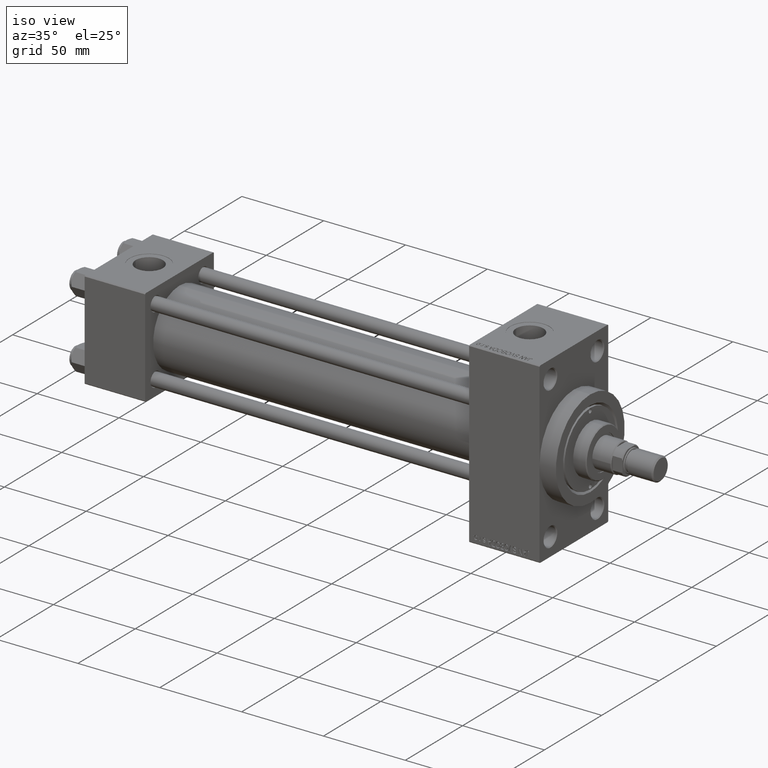
[diagram: clean part render]
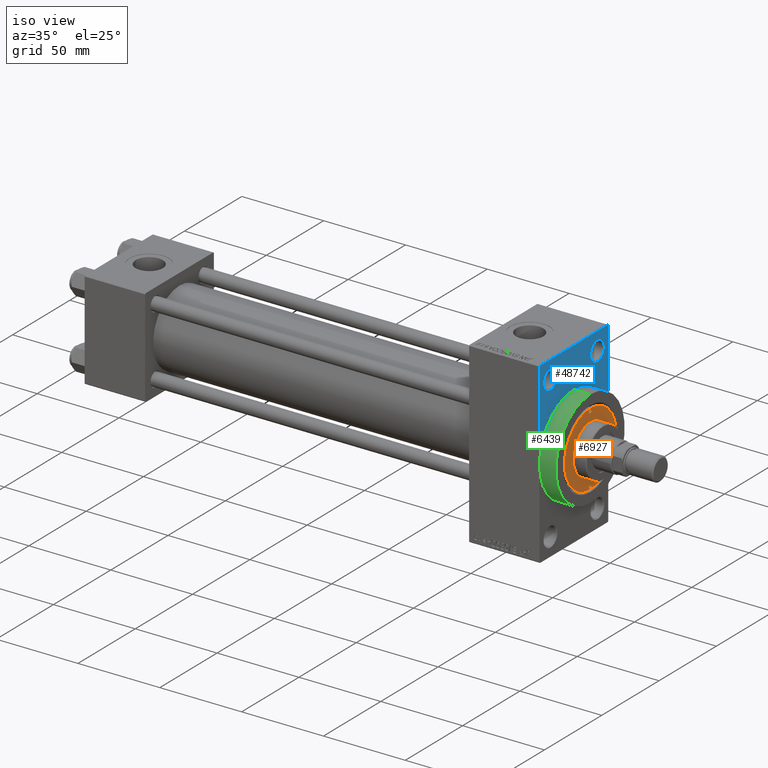
[diagram: same view with three faces highlighted in distinct colors, each labeled with its STEP entity id]
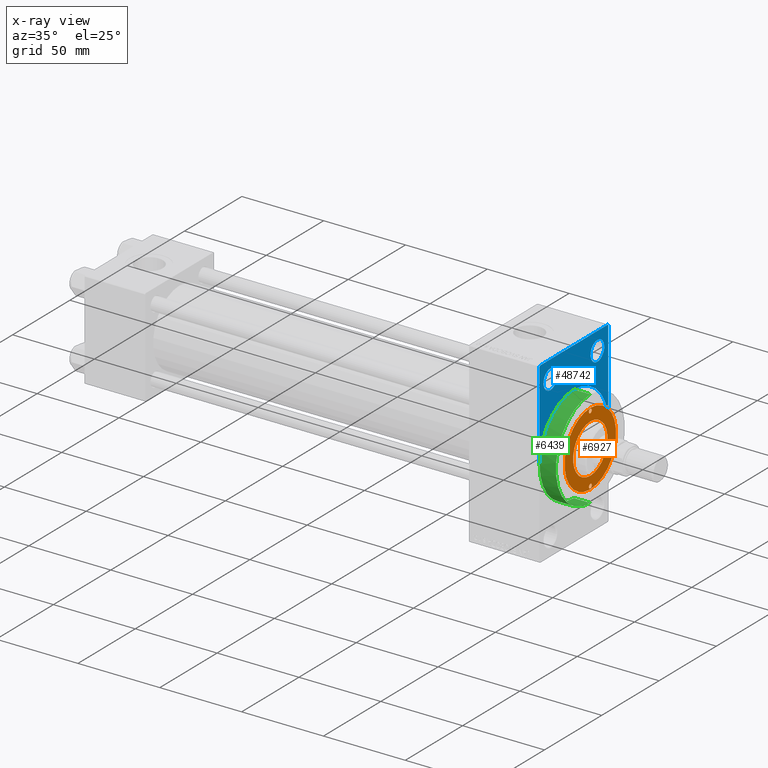
[diagram: x-ray of the same camera — body ghosted, the three highlighted faces saturated]
A machine part, iso view with three faces highlighted in distinct colors.
The next image is the same camera in x-ray (body ghosted, the three faces saturated) — at least one of them is partly hidden behind the body in this view.
Their STEP definitions:

[orange] entity #6927 — the highlighted planar face has unit normal (1, -0, -0).
#166 = CIRCLE ( 'NONE', #30821, 22.50000000000000355 ) ;
#400 = AXIS2_PLACEMENT_3D ( 'NONE', #48421, #6219, #41584 ) ;
#1160 = VERTEX_POINT ( 'NONE', #24662 ) ;
#1731 = FACE_BOUND ( 'NONE', #35159, .T. ) ;
#1755 = AXIS2_PLACEMENT_3D ( 'NONE', #32557, #42515, #8823 ) ;
#1932 = AXIS2_PLACEMENT_3D ( 'NONE', #33710, #18025, #2875 ) ;
#2875 = DIRECTION ( 'NONE',  ( 1.000000000000000000, 0.000000000000000000, 0.000000000000000000 ) ) ;
#4000 = CARTESIAN_POINT ( 'NONE',  ( 0.000000000000000000, 0.000000000000000000, 43.25999999999999801 ) ) ;
#5622 = ORIENTED_EDGE ( 'NONE', *, *, #20699, .F. ) ;
#5970 = CIRCLE ( 'NONE', #1932, 22.50000000000000355 ) ;
#6219 = DIRECTION ( 'NONE',  ( -0.000000000000000000, -0.000000000000000000, 1.000000000000000000 ) ) ;
#6927 = ADVANCED_FACE ( 'NONE', ( #17134, #24966, #1731, #11936 ), #27341, .T. ) ;
#7112 = EDGE_CURVE ( 'NONE', #36752, #47487, #46964, .T. ) ;
#8041 = CARTESIAN_POINT ( 'NONE',  ( 20.75000000000000000, 0.000000000000000000, 43.25999999999999801 ) ) ;
#8503 = DIRECTION ( 'NONE',  ( 0.000000000000000000, 0.000000000000000000, 1.000000000000000000 ) ) ;
#8823 = DIRECTION ( 'NONE',  ( 1.000000000000000000, 0.000000000000000000, -0.000000000000000000 ) ) ;
#9174 = CARTESIAN_POINT ( 'NONE',  ( 20.75000000000000000, 0.000000000000000000, 43.25999999999999801 ) ) ;
#9920 = VERTEX_POINT ( 'NONE', #12687 ) ;
#10439 = EDGE_CURVE ( 'NONE', #14187, #32037, #17856, .T. ) ;
#10974 = CIRCLE ( 'NONE', #39908, 1.249999999999997558 ) ;
#11603 = EDGE_CURVE ( 'NONE', #40432, #1160, #166, .T. ) ;
#11738 = AXIS2_PLACEMENT_3D ( 'NONE', #49631, #45087, #45583 ) ;
#11746 = ORIENTED_EDGE ( 'NONE', *, *, #11603, .T. ) ;
#11797 = DIRECTION ( 'NONE',  ( 1.000000000000000000, 0.000000000000000000, 0.000000000000000000 ) ) ;
#11936 = FACE_OUTER_BOUND ( 'NONE', #38841, .T. ) ;
#12687 = CARTESIAN_POINT ( 'NONE',  ( -19.50000000000000355, 0.000000000000000000, 43.25999999999999801 ) ) ;
#13122 = ORIENTED_EDGE ( 'NONE', *, *, #7112, .F. ) ;
#13630 = CARTESIAN_POINT ( 'NONE',  ( 22.50000000000000355, 2.755455298081545172E-15, 43.25999999999999801 ) ) ;
#14187 = VERTEX_POINT ( 'NONE', #38227 ) ;
#14851 = CIRCLE ( 'NONE', #43099, 15.00000000000000000 ) ;
#14974 = CIRCLE ( 'NONE', #11738, 1.249999999999997558 ) ;
#15014 = EDGE_CURVE ( 'NONE', #1160, #40432, #5970, .T. ) ;
#17070 = DIRECTION ( 'NONE',  ( 1.000000000000000000, 0.000000000000000000, 0.000000000000000000 ) ) ;
#17134 = FACE_BOUND ( 'NONE', #50005, .T. ) ;
#17856 = CIRCLE ( 'NONE', #46131, 15.00000000000000000 ) ;
#18025 = DIRECTION ( 'NONE',  ( 0.000000000000000000, 0.000000000000000000, 1.000000000000000000 ) ) ;
#18631 = DIRECTION ( 'NONE',  ( 1.000000000000000000, 0.000000000000000000, 0.000000000000000000 ) ) ;
#19237 = CARTESIAN_POINT ( 'NONE',  ( -15.00000000000000000, 0.000000000000000000, 43.25999999999999801 ) ) ;
#19620 = CARTESIAN_POINT ( 'NONE',  ( 0.000000000000000000, 0.000000000000000000, 43.25999999999999801 ) ) ;
#19832 = ORIENTED_EDGE ( 'NONE', *, *, #37078, .F. ) ;
#20699 = EDGE_CURVE ( 'NONE', #47487, #36752, #10974, .T. ) ;
#22726 = EDGE_CURVE ( 'NONE', #9920, #43137, #14974, .T. ) ;
#24662 = CARTESIAN_POINT ( 'NONE',  ( -22.50000000000000355, 0.000000000000000000, 43.25999999999999801 ) ) ;
#24966 = FACE_BOUND ( 'NONE', #48180, .T. ) ;
#26437 = CARTESIAN_POINT ( 'NONE',  ( -22.00000000000000000, 1.530808498934188612E-16, 43.25999999999999801 ) ) ;
#26471 = DIRECTION ( 'NONE',  ( 0.000000000000000000, 0.000000000000000000, 1.000000000000000000 ) ) ;
#27341 = PLANE ( 'NONE',  #1755 ) ;
#29150 = AXIS2_PLACEMENT_3D ( 'NONE', #8041, #31015, #18631 ) ;
#30123 = CARTESIAN_POINT ( 'NONE',  ( 19.50000000000000355, 1.530808498934188612E-16, 43.25999999999999801 ) ) ;
#30821 = AXIS2_PLACEMENT_3D ( 'NONE', #36533, #40831, #17070 ) ;
#31015 = DIRECTION ( 'NONE',  ( -0.000000000000000000, -0.000000000000000000, 1.000000000000000000 ) ) ;
#32037 = VERTEX_POINT ( 'NONE', #19237 ) ;
#32557 = CARTESIAN_POINT ( 'NONE',  ( 0.000000000000000000, 0.000000000000000000, 43.25999999999999801 ) ) ;
#32641 = CIRCLE ( 'NONE', #400, 1.249999999999997558 ) ;
#32914 = DIRECTION ( 'NONE',  ( -0.000000000000000000, -0.000000000000000000, 1.000000000000000000 ) ) ;
#33710 = CARTESIAN_POINT ( 'NONE',  ( 0.000000000000000000, 0.000000000000000000, 43.25999999999999801 ) ) ;
#35159 = EDGE_LOOP ( 'NONE', ( #37483, #40119 ) ) ;
#36354 = EDGE_CURVE ( 'NONE', #32037, #14187, #14851, .T. ) ;
#36533 = CARTESIAN_POINT ( 'NONE',  ( 0.000000000000000000, 0.000000000000000000, 43.25999999999999801 ) ) ;
#36752 = VERTEX_POINT ( 'NONE', #30123 ) ;
#37078 = EDGE_CURVE ( 'NONE', #43137, #9920, #32641, .T. ) ;
#37483 = ORIENTED_EDGE ( 'NONE', *, *, #36354, .F. ) ;
#38227 = CARTESIAN_POINT ( 'NONE',  ( 15.00000000000000000, 1.836970198721029589E-15, 43.25999999999999801 ) ) ;
#38841 = EDGE_LOOP ( 'NONE', ( #46011, #11746 ) ) ;
#39908 = AXIS2_PLACEMENT_3D ( 'NONE', #9174, #32914, #40504 ) ;
#40119 = ORIENTED_EDGE ( 'NONE', *, *, #10439, .F. ) ;
#40432 = VERTEX_POINT ( 'NONE', #13630 ) ;
#40504 = DIRECTION ( 'NONE',  ( 1.000000000000000000, 0.000000000000000000, 0.000000000000000000 ) ) ;
#40831 = DIRECTION ( 'NONE',  ( 0.000000000000000000, 0.000000000000000000, 1.000000000000000000 ) ) ;
#41584 = DIRECTION ( 'NONE',  ( 1.000000000000000000, 0.000000000000000000, 0.000000000000000000 ) ) ;
#42416 = CARTESIAN_POINT ( 'NONE',  ( 22.00000000000000000, 0.000000000000000000, 43.25999999999999801 ) ) ;
#42515 = DIRECTION ( 'NONE',  ( 0.000000000000000000, 0.000000000000000000, 1.000000000000000000 ) ) ;
#42660 = ORIENTED_EDGE ( 'NONE', *, *, #22726, .F. ) ;
#43099 = AXIS2_PLACEMENT_3D ( 'NONE', #19620, #8503, #11797 ) ;
#43137 = VERTEX_POINT ( 'NONE', #26437 ) ;
#45087 = DIRECTION ( 'NONE',  ( -0.000000000000000000, -0.000000000000000000, 1.000000000000000000 ) ) ;
#45583 = DIRECTION ( 'NONE',  ( 1.000000000000000000, 0.000000000000000000, 0.000000000000000000 ) ) ;
#46011 = ORIENTED_EDGE ( 'NONE', *, *, #15014, .T. ) ;
#46131 = AXIS2_PLACEMENT_3D ( 'NONE', #4000, #26471, #46456 ) ;
#46456 = DIRECTION ( 'NONE',  ( 1.000000000000000000, 0.000000000000000000, 0.000000000000000000 ) ) ;
#46964 = CIRCLE ( 'NONE', #29150, 1.249999999999997558 ) ;
#47487 = VERTEX_POINT ( 'NONE', #42416 ) ;
#48180 = EDGE_LOOP ( 'NONE', ( #5622, #13122 ) ) ;
#48421 = CARTESIAN_POINT ( 'NONE',  ( -20.75000000000000000, 0.000000000000000000, 43.25999999999999801 ) ) ;
#49631 = CARTESIAN_POINT ( 'NONE',  ( -20.75000000000000000, 0.000000000000000000, 43.25999999999999801 ) ) ;
#50005 = EDGE_LOOP ( 'NONE', ( #42660, #19832 ) ) ;

[blue] entity #48742 — the highlighted planar face has unit normal (-1, 0, 0).
#299 = DIRECTION ( 'NONE',  ( 0.000000000000000000, 0.000000000000000000, 1.000000000000000000 ) ) ;
#597 = ORIENTED_EDGE ( 'NONE', *, *, #3696, .T. ) ;
#1329 = ORIENTED_EDGE ( 'NONE', *, *, #36302, .F. ) ;
#1512 = DIRECTION ( 'NONE',  ( -1.000000000000000000, 0.000000000000000000, -0.000000000000000000 ) ) ;
#2313 = CARTESIAN_POINT ( 'NONE',  ( 278.0000000000000000, 0.000000000000000000, 30.00000000000000000 ) ) ;
#2564 = VECTOR ( 'NONE', #49503, 1000.000000000000000 ) ;
#2591 = PLANE ( 'NONE',  #41002 ) ;
#2720 = CIRCLE ( 'NONE', #45508, 30.00000000000000000 ) ;
#3594 = VERTEX_POINT ( 'NONE', #13577 ) ;
#3696 = EDGE_CURVE ( 'NONE', #8220, #35297, #26683, .T. ) ;
#4615 = AXIS2_PLACEMENT_3D ( 'NONE', #46006, #7603, #22989 ) ;
#6135 = FACE_BOUND ( 'NONE', #46866, .T. ) ;
#6229 = CARTESIAN_POINT ( 'NONE',  ( 278.0000000000000000, 30.00000000000000000, 0.000000000000000000 ) ) ;
#6385 = FACE_BOUND ( 'NONE', #42821, .T. ) ;
#6669 = EDGE_LOOP ( 'NONE', ( #597, #44704, #43523, #1329, #25452, #26515, #34460 ) ) ;
#6891 = DIRECTION ( 'NONE',  ( -1.000000000000000000, 0.000000000000000000, -0.000000000000000000 ) ) ;
#7603 = DIRECTION ( 'NONE',  ( -1.000000000000000000, 0.000000000000000000, -0.000000000000000000 ) ) ;
#8220 = VERTEX_POINT ( 'NONE', #47499 ) ;
#9132 = DIRECTION ( 'NONE',  ( 0.000000000000000000, -0.7071067811865474617, 0.7071067811865474617 ) ) ;
#9888 = DIRECTION ( 'NONE',  ( 0.000000000000000000, 0.000000000000000000, -1.000000000000000000 ) ) ;
#10562 = VERTEX_POINT ( 'NONE', #6229 ) ;
#10639 = ORIENTED_EDGE ( 'NONE', *, *, #27064, .T. ) ;
#10826 = CARTESIAN_POINT ( 'NONE',  ( 278.0000000000000000, 29.99999999999999645, 54.49999999999999289 ) ) ;
#12439 = AXIS2_PLACEMENT_3D ( 'NONE', #40694, #41188, #40448 ) ;
#13278 = LINE ( 'NONE', #31742, #31019 ) ;
#13577 = CARTESIAN_POINT ( 'NONE',  ( 278.0000000000000000, 29.99999999999999645, 53.99999999999996447 ) ) ;
#14864 = LINE ( 'NONE', #10826, #2564 ) ;
#15244 = EDGE_CURVE ( 'NONE', #10562, #38855, #2720, .T. ) ;
#15775 = CARTESIAN_POINT ( 'NONE',  ( 278.0000000000000000, -20.50000000000000000, 49.50000000000019895 ) ) ;
#15948 = CARTESIAN_POINT ( 'NONE',  ( 278.0000000000000000, 20.50000000000000000, 43.50000000000000000 ) ) ;
#16699 = ORIENTED_EDGE ( 'NONE', *, *, #49070, .T. ) ;
#16705 = CARTESIAN_POINT ( 'NONE',  ( 278.0000000000000000, 29.49999999999996803, 54.49999999999999289 ) ) ;
#16784 = AXIS2_PLACEMENT_3D ( 'NONE', #27013, #18441, #34875 ) ;
#16850 = EDGE_CURVE ( 'NONE', #44949, #26063, #33417, .T. ) ;
#16949 = CARTESIAN_POINT ( 'NONE',  ( 278.0000000000000000, 20.50000000000000000, 37.49999999999979394 ) ) ;
#18441 = DIRECTION ( 'NONE',  ( -1.000000000000000000, 0.000000000000000000, -0.000000000000000000 ) ) ;
#22136 = CARTESIAN_POINT ( 'NONE',  ( 278.0000000000000000, 29.99999999999999645, 54.49999999999999289 ) ) ;
#22279 = DIRECTION ( 'NONE',  ( -0.000000000000000000, 0.000000000000000000, 1.000000000000000000 ) ) ;
#22375 = CARTESIAN_POINT ( 'NONE',  ( 278.0000000000000000, -30.00000000000000000, 0.000000000000000000 ) ) ;
#22575 = DIRECTION ( 'NONE',  ( -0.000000000000000000, -0.7071067811865253683, -0.7071067811865696662 ) ) ;
#22989 = DIRECTION ( 'NONE',  ( 0.000000000000000000, 0.000000000000000000, 1.000000000000000000 ) ) ;
#23079 = LINE ( 'NONE', #38512, #45341 ) ;
#24330 = AXIS2_PLACEMENT_3D ( 'NONE', #48249, #1512, #43953 ) ;
#25329 = FACE_OUTER_BOUND ( 'NONE', #6669, .T. ) ;
#25452 = ORIENTED_EDGE ( 'NONE', *, *, #15244, .F. ) ;
#26063 = VERTEX_POINT ( 'NONE', #39410 ) ;
#26515 = ORIENTED_EDGE ( 'NONE', *, *, #27117, .F. ) ;
#26683 = LINE ( 'NONE', #22136, #36347 ) ;
#27013 = CARTESIAN_POINT ( 'NONE',  ( 278.0000000000000000, 20.50000000000000000, 43.50000000000000000 ) ) ;
#27064 = EDGE_CURVE ( 'NONE', #49869, #33717, #46143, .T. ) ;
#27117 = EDGE_CURVE ( 'NONE', #3594, #10562, #14864, .T. ) ;
#27942 = DIRECTION ( 'NONE',  ( 0.000000000000000000, 0.000000000000000000, -1.000000000000000000 ) ) ;
#30162 = VERTEX_POINT ( 'NONE', #43747 ) ;
#30334 = CARTESIAN_POINT ( 'NONE',  ( 278.0000000000000000, 0.000000000000000000, 0.000000000000000000 ) ) ;
#30537 = VECTOR ( 'NONE', #9132, 1000.000000000000114 ) ;
#31019 = VECTOR ( 'NONE', #27942, 1000.000000000000000 ) ;
#31707 = EDGE_CURVE ( 'NONE', #35297, #30162, #23079, .T. ) ;
#31742 = CARTESIAN_POINT ( 'NONE',  ( 278.0000000000000000, -30.00000000000000000, 54.50000000000000000 ) ) ;
#33417 = CIRCLE ( 'NONE', #47956, 6.000000000000199840 ) ;
#33717 = VERTEX_POINT ( 'NONE', #15775 ) ;
#34460 = ORIENTED_EDGE ( 'NONE', *, *, #49828, .T. ) ;
#34875 = DIRECTION ( 'NONE',  ( 0.000000000000000000, 0.000000000000000000, 1.000000000000000000 ) ) ;
#35297 = VERTEX_POINT ( 'NONE', #46726 ) ;
#35385 = CIRCLE ( 'NONE', #16784, 6.000000000000199840 ) ;
#36302 = EDGE_CURVE ( 'NONE', #38855, #47572, #41482, .T. ) ;
#36347 = VECTOR ( 'NONE', #37570, 1000.000000000000000 ) ;
#36415 = LINE ( 'NONE', #16705, #30537 ) ;
#36421 = EDGE_CURVE ( 'NONE', #30162, #47572, #13278, .T. ) ;
#37570 = DIRECTION ( 'NONE',  ( 0.000000000000000000, -1.000000000000000000, 1.156482317317871478E-16 ) ) ;
#38512 = CARTESIAN_POINT ( 'NONE',  ( 278.0000000000000000, -30.00000000000000000, 53.99999999999997158 ) ) ;
#38855 = VERTEX_POINT ( 'NONE', #2313 ) ;
#39410 = CARTESIAN_POINT ( 'NONE',  ( 278.0000000000000000, 20.50000000000000000, 49.50000000000019895 ) ) ;
#39709 = CARTESIAN_POINT ( 'NONE',  ( 278.0000000000000000, -20.50000000000000000, 37.49999999999979394 ) ) ;
#40448 = DIRECTION ( 'NONE',  ( 0.000000000000000000, 0.000000000000000000, -1.000000000000000000 ) ) ;
#40694 = CARTESIAN_POINT ( 'NONE',  ( 278.0000000000000000, 0.000000000000000000, 0.000000000000000000 ) ) ;
#41002 = AXIS2_PLACEMENT_3D ( 'NONE', #48342, #6891, #22279 ) ;
#41188 = DIRECTION ( 'NONE',  ( 1.000000000000000000, 0.000000000000000000, 0.000000000000000000 ) ) ;
#41468 = DIRECTION ( 'NONE',  ( 1.000000000000000000, 0.000000000000000000, 0.000000000000000000 ) ) ;
#41482 = CIRCLE ( 'NONE', #12439, 30.00000000000000000 ) ;
#42821 = EDGE_LOOP ( 'NONE', ( #10639, #47611 ) ) ;
#43523 = ORIENTED_EDGE ( 'NONE', *, *, #36421, .T. ) ;
#43747 = CARTESIAN_POINT ( 'NONE',  ( 278.0000000000000000, -30.00000000000000000, 53.99999999999997158 ) ) ;
#43953 = DIRECTION ( 'NONE',  ( 0.000000000000000000, 0.000000000000000000, 1.000000000000000000 ) ) ;
#44704 = ORIENTED_EDGE ( 'NONE', *, *, #31707, .T. ) ;
#44949 = VERTEX_POINT ( 'NONE', #16949 ) ;
#45341 = VECTOR ( 'NONE', #22575, 1000.000000000000114 ) ;
#45508 = AXIS2_PLACEMENT_3D ( 'NONE', #30334, #41468, #9888 ) ;
#45947 = ORIENTED_EDGE ( 'NONE', *, *, #16850, .T. ) ;
#46006 = CARTESIAN_POINT ( 'NONE',  ( 278.0000000000000000, -20.50000000000000000, 43.50000000000000000 ) ) ;
#46143 = CIRCLE ( 'NONE', #24330, 6.000000000000199840 ) ;
#46505 = EDGE_CURVE ( 'NONE', #33717, #49869, #49819, .T. ) ;
#46726 = CARTESIAN_POINT ( 'NONE',  ( 278.0000000000000000, -29.50000000000000355, 54.50000000000000000 ) ) ;
#46788 = DIRECTION ( 'NONE',  ( -1.000000000000000000, 0.000000000000000000, -0.000000000000000000 ) ) ;
#46866 = EDGE_LOOP ( 'NONE', ( #45947, #16699 ) ) ;
#47499 = CARTESIAN_POINT ( 'NONE',  ( 278.0000000000000000, 29.49999999999996803, 54.49999999999999289 ) ) ;
#47572 = VERTEX_POINT ( 'NONE', #22375 ) ;
#47611 = ORIENTED_EDGE ( 'NONE', *, *, #46505, .T. ) ;
#47956 = AXIS2_PLACEMENT_3D ( 'NONE', #15948, #46788, #299 ) ;
#48249 = CARTESIAN_POINT ( 'NONE',  ( 278.0000000000000000, -20.50000000000000000, 43.50000000000000000 ) ) ;
#48342 = CARTESIAN_POINT ( 'NONE',  ( 278.0000000000000000, 0.000000000000000000, 0.000000000000000000 ) ) ;
#48742 = ADVANCED_FACE ( 'NONE', ( #6385, #6135, #25329 ), #2591, .F. ) ;
#49070 = EDGE_CURVE ( 'NONE', #26063, #44949, #35385, .T. ) ;
#49503 = DIRECTION ( 'NONE',  ( 0.000000000000000000, 0.000000000000000000, -1.000000000000000000 ) ) ;
#49819 = CIRCLE ( 'NONE', #4615, 6.000000000000199840 ) ;
#49828 = EDGE_CURVE ( 'NONE', #3594, #8220, #36415, .T. ) ;
#49869 = VERTEX_POINT ( 'NONE', #39709 ) ;

[green] entity #6439 — the highlighted cylindrical surface (partial cylindrical patch) has radius 30 mm, axis along (-1, -0, -0).
#25 = VERTEX_POINT ( 'NONE', #10548 ) ;
#2313 = CARTESIAN_POINT ( 'NONE',  ( 278.0000000000000000, 0.000000000000000000, 30.00000000000000000 ) ) ;
#3493 = EDGE_CURVE ( 'NONE', #25, #38855, #43907, .T. ) ;
#6439 = ADVANCED_FACE ( 'NONE', ( #14784 ), #30192, .T. ) ;
#7245 = VECTOR ( 'NONE', #27749, 1000.000000000000000 ) ;
#8201 = CARTESIAN_POINT ( 'NONE',  ( 278.0000000000000000, 3.673940397442059178E-15, -30.00000000000000000 ) ) ;
#9597 = EDGE_CURVE ( 'NONE', #25, #17736, #15453, .T. ) ;
#10153 = CARTESIAN_POINT ( 'NONE',  ( 288.0000000000000568, 3.673940397442059178E-15, -30.00000000000000000 ) ) ;
#10397 = DIRECTION ( 'NONE',  ( -1.000000000000000000, -0.000000000000000000, -0.000000000000000000 ) ) ;
#10548 = CARTESIAN_POINT ( 'NONE',  ( 288.0000000000000568, 0.000000000000000000, 30.00000000000000000 ) ) ;
#12439 = AXIS2_PLACEMENT_3D ( 'NONE', #40694, #41188, #40448 ) ;
#14784 = FACE_OUTER_BOUND ( 'NONE', #19532, .T. ) ;
#15117 = DIRECTION ( 'NONE',  ( 1.000000000000000000, 0.000000000000000000, 0.000000000000000000 ) ) ;
#15453 = CIRCLE ( 'NONE', #27538, 30.00000000000000000 ) ;
#15495 = ORIENTED_EDGE ( 'NONE', *, *, #36302, .T. ) ;
#15625 = EDGE_CURVE ( 'NONE', #47572, #33712, #26920, .T. ) ;
#17736 = VERTEX_POINT ( 'NONE', #32615 ) ;
#19532 = EDGE_LOOP ( 'NONE', ( #47502, #31603, #27047, #15495, #36334 ) ) ;
#22375 = CARTESIAN_POINT ( 'NONE',  ( 278.0000000000000000, -30.00000000000000000, 0.000000000000000000 ) ) ;
#23861 = CARTESIAN_POINT ( 'NONE',  ( 288.0000000000000568, 0.000000000000000000, 0.000000000000000000 ) ) ;
#24277 = AXIS2_PLACEMENT_3D ( 'NONE', #41326, #45615, #34255 ) ;
#25291 = AXIS2_PLACEMENT_3D ( 'NONE', #30275, #15117, #49999 ) ;
#26920 = CIRCLE ( 'NONE', #25291, 30.00000000000000000 ) ;
#27047 = ORIENTED_EDGE ( 'NONE', *, *, #3493, .T. ) ;
#27073 = VECTOR ( 'NONE', #10397, 1000.000000000000000 ) ;
#27538 = AXIS2_PLACEMENT_3D ( 'NONE', #23861, #39297, #43079 ) ;
#27749 = DIRECTION ( 'NONE',  ( -1.000000000000000000, -0.000000000000000000, -0.000000000000000000 ) ) ;
#30192 = CYLINDRICAL_SURFACE ( 'NONE', #24277, 30.00000000000000000 ) ;
#30275 = CARTESIAN_POINT ( 'NONE',  ( 278.0000000000000000, 0.000000000000000000, 0.000000000000000000 ) ) ;
#31304 = CARTESIAN_POINT ( 'NONE',  ( 288.0000000000000568, 0.000000000000000000, 30.00000000000000000 ) ) ;
#31603 = ORIENTED_EDGE ( 'NONE', *, *, #9597, .F. ) ;
#32615 = CARTESIAN_POINT ( 'NONE',  ( 288.0000000000000568, 3.673940397442059178E-15, -30.00000000000000000 ) ) ;
#33712 = VERTEX_POINT ( 'NONE', #8201 ) ;
#34255 = DIRECTION ( 'NONE',  ( 0.000000000000000000, 0.000000000000000000, 1.000000000000000000 ) ) ;
#36302 = EDGE_CURVE ( 'NONE', #38855, #47572, #41482, .T. ) ;
#36334 = ORIENTED_EDGE ( 'NONE', *, *, #15625, .T. ) ;
#38855 = VERTEX_POINT ( 'NONE', #2313 ) ;
#39297 = DIRECTION ( 'NONE',  ( 1.000000000000000000, 0.000000000000000000, 0.000000000000000000 ) ) ;
#39443 = EDGE_CURVE ( 'NONE', #17736, #33712, #45522, .T. ) ;
#40448 = DIRECTION ( 'NONE',  ( 0.000000000000000000, 0.000000000000000000, -1.000000000000000000 ) ) ;
#40694 = CARTESIAN_POINT ( 'NONE',  ( 278.0000000000000000, 0.000000000000000000, 0.000000000000000000 ) ) ;
#41188 = DIRECTION ( 'NONE',  ( 1.000000000000000000, 0.000000000000000000, 0.000000000000000000 ) ) ;
#41326 = CARTESIAN_POINT ( 'NONE',  ( 288.0000000000000568, 0.000000000000000000, 0.000000000000000000 ) ) ;
#41482 = CIRCLE ( 'NONE', #12439, 30.00000000000000000 ) ;
#43079 = DIRECTION ( 'NONE',  ( 0.000000000000000000, 0.000000000000000000, -1.000000000000000000 ) ) ;
#43907 = LINE ( 'NONE', #31304, #7245 ) ;
#45522 = LINE ( 'NONE', #10153, #27073 ) ;
#45615 = DIRECTION ( 'NONE',  ( -1.000000000000000000, -0.000000000000000000, -0.000000000000000000 ) ) ;
#47502 = ORIENTED_EDGE ( 'NONE', *, *, #39443, .F. ) ;
#47572 = VERTEX_POINT ( 'NONE', #22375 ) ;
#49999 = DIRECTION ( 'NONE',  ( 0.000000000000000000, 0.000000000000000000, -1.000000000000000000 ) ) ;